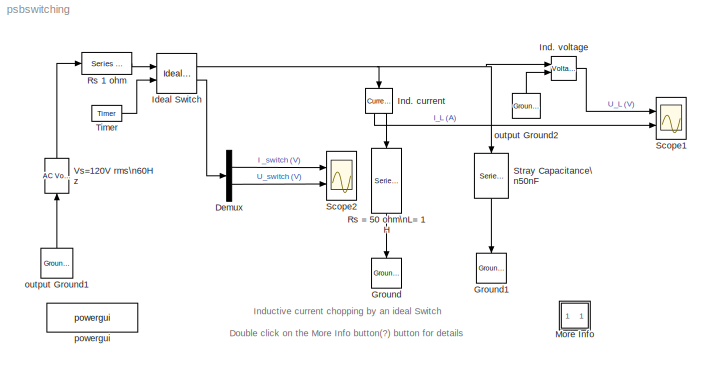
MODEL psbswitching
KIND model
BLOCK [Reference]   Ind. current  REF=powerlib2/Measurements/Current Measurement
  OutputType = Magnitude
  PSBOutputType = 01
  PSBequivalent = 0
  PhasorSimulation = off
  Ports = [1, 2]
  SourceBlock = powerlib2/Measurements/Current Measurement
  SourceType = Current Measurement
  Tag = PoWeRsYsTeMmEaSuReMeNt
BLOCK [Demux] Demux
  Outputs = 2
  Ports = [1, 2]
BLOCK [Reference] Ground  REF=powerlib2/Connectors/Ground (input)
  Ports = [1]
  SourceBlock = powerlib2/Connectors/Ground (input)
  SourceType = Ground
  Tag = PoWeRsYsTeMbLoCk
BLOCK [Reference] Ground1  REF=powerlib2/Connectors/Ground (input)
  Ports = [1]
  SourceBlock = powerlib2/Connectors/Ground (input)
  SourceType = Ground
  Tag = PoWeRsYsTeMbLoCk
BLOCK [Reference] Ideal Switch  REF=powerlib2/Power\nElectronics/Ideal Switch
  Cs = 0
  IC = 1
  Lon = 1e-9
  PSBOutputType = 10
  Ports = [2, 2]
  Ron = 1e-3
  Rs = Inf
  SourceBlock = powerlib2/Power\nElectronics/Ideal Switch
  SourceType = Ideal Switch
  Tag = PoWeRsYsTeMbLoCk
BLOCK [Reference] Ind. voltage  REF=powerlib2/Measurements/Voltage Measurement
  OutputType = Magnitude
  PSBOutputType = 0
  PSBequivalent = 0
  PhasorSimulation = off
  Ports = [2, 1]
  SourceBlock = powerlib2/Measurements/Voltage Measurement
  SourceType = Voltage Measurement
  Tag = PoWeRsYsTeMmEaSuReMeNt
BLOCK [SubSystem] More Info
  MaskDisplay = disp('?')
  MaskIconFrame = on
  MaskIconOpaque = on
  MaskIconRotate = none
  MaskIconUnits = autoscale
  MinAlgLoopOccurrences = off
  Ports = []
  RTWSystemCode = Auto
  TreatAsAtomicUnit = off
BLOCK [Reference] Rs 1 ohm  REF=powerlib2/Elements/Series RLC Branch
  PSBOutputType = 1
  Ports = [1, 1]
  SourceBlock = powerlib2/Elements/Series RLC Branch
  SourceType = Series RLC Branch
  Tag = PoWeRsYsTeMbLoCk
  a = 1
  b = 0
  c = Inf
  mesure = None
BLOCK [Reference] Rs = 50 ohm\nL= 1 H  REF=powerlib2/Elements/Series RLC Branch
  PSBOutputType = 1
  Ports = [1, 1]
  SourceBlock = powerlib2/Elements/Series RLC Branch
  SourceType = Series RLC Branch
  Tag = PoWeRsYsTeMbLoCk
  a = 50
  b = 1
  c = Inf
  mesure = None
BLOCK [Scope] Scope1
  DataFormat = Array
  LimitDataPoints = off
  NumInputPorts = 2
  Ports = [2]
  SaveName = U_L
  TimeRange = 0.2
  YMax = 1000~0.928922
  YMin = -1000~-0.477505
  ZoomMode = yonly
BLOCK [Scope] Scope2
  DataFormat = Array
  LimitDataPoints = off
  NumInputPorts = 2
  Ports = [2]
  TimeRange = 0.2
  YMax = 10~1000
  YMin = -30~-1000
  ZoomMode = yonly
BLOCK [Reference] Stray Capacitance\n50nF  REF=powerlib2/Elements/Series RLC Branch
  PSBOutputType = 1
  Ports = [1, 1]
  SourceBlock = powerlib2/Elements/Series RLC Branch
  SourceType = Series RLC Branch
  Tag = PoWeRsYsTeMbLoCk
  a = 0
  b = 0
  c = 50e-9
  mesure = None
BLOCK [Reference] Timer  REF=powerlib_extras/Control \nBlocks/Timer
  Ports = [0, 1]
  SourceBlock = powerlib_extras/Control \nBlocks/Timer
  SourceType = Timer
  e = [1 0 1 ]
  t = [0 36e-3 150e-3]
BLOCK [Reference] Vs=120V rms\n60Hz  REF=powerlib2/Electrical\nSources/AC Voltage Source
  A = 120*sqrt(2)
  F = 60
  P = 0
  PSBOutputType = 1
  Ports = [1, 1]
  SourceBlock = powerlib2/Electrical\nSources/AC Voltage Source
  SourceType = AC Voltage Source
  Tag = PoWeRsYsTeMbLoCk
  mesure = None
  stime = 0
BLOCK [Reference] output Ground1  REF=powerlib2/Connectors/Ground (output)
  PSBOutputType = 1
  Ports = [0, 1]
  SourceBlock = powerlib2/Connectors/Ground (output)
  SourceType = Ground
  Tag = PoWeRsYsTeMbLoCk
BLOCK [Reference] output Ground2  REF=powerlib2/Connectors/Ground (output)
  PSBOutputType = 1
  Ports = [0, 1]
  SourceBlock = powerlib2/Connectors/Ground (output)
  SourceType = Ground
  Tag = PoWeRsYsTeMbLoCk
BLOCK [Reference] powergui  REF=powerlib2/powergui
  DisplayStyle = off
  Frange = logspace(0,3,50)
  FreqAxis = off
  MaxFrequency = 1000
  Ports = []
  RmsSteady = 1
  SourceBlock = powerlib2/powergui
  SourceType = PSB option menu block
  StartTime = 0.0
  Ts = 0
  Xlog = off
  Ylog = off
  ZoomFFT = on
  cycles = 1
  display = off
  echomessages = off
  frequency = 60
  frequencyindice = 1
  frequencyindicesteady = 1
  fundamental = 60
  methode = off
  save = off
  variable = ZData
ANNOTATION (root): Double click on the More Info button(?) button for details
ANNOTATION (root): Inductive current chopping by an ideal Switch
ANNOTATION More Info: Circuit Description
ANNOTATION More Info: Demonstration
ANNOTATION More Info: G. Sybille (Hydro-Quebec)
ANNOTATION More Info: Start the simulation.and observe the inductor voltage U_L and inductor current I_L on Scope1\nAt the opening time, t = 36 ms, the current in the inductor is I_L= 0.187 A. The current chopping in the inductor produces a \nhigh frequency overvoltage (711 Hz) across the inductor. The maximum voltage can be calculated from the following equation:\n\n U_Lmax = I_L*sqrt(L/C) = 0.187*sqrt(1/50e-9) = 836 ...<+481ch>
ANNOTATION More Info: The Ideal Switch is used to switch off and on an inductor (L = 1H, R = 50 ohms) on a 120 Vrms, 60 Hz source.\nThe inductor has a stray capacitance C = 50 nF. The switch resistance is 1e-3 ohm.\nThe switch is initially closed (initial state = 1). It is open at time t = 36ms and then reclosed at time t = 0.15 s.
ANNOTATION More Info: This example illustrates the effect of current chopping in an inductive circuit
LINE   Ind. current:1 -> Scope1:2
LINE   Ind. current:2 -> Rs = 50 ohm\nL= 1 H:1
LINE Demux:1 -> Scope2:1
LINE Demux:2 -> Scope2:2
NET Ideal Switch:1 ->   Ind. current:1, Ind. voltage:1, Stray Capacitance\n50nF:1
LINE Ideal Switch:2 -> Demux:1
LINE Ind. voltage:1 -> Scope1:1
LINE Rs 1 ohm:1 -> Ideal Switch:1
LINE Rs = 50 ohm\nL= 1 H:1 -> Ground:1
LINE Stray Capacitance\n50nF:1 -> Ground1:1
LINE Timer:1 -> Ideal Switch:2
LINE Vs=120V rms\n60Hz:1 -> Rs 1 ohm:1
LINE output Ground1:1 -> Vs=120V rms\n60Hz:1
LINE output Ground2:1 -> Ind. voltage:2
note: NET lines group one-source signal fan-out (src -> all destinations, sorted); 1:1 wires keep LINE
